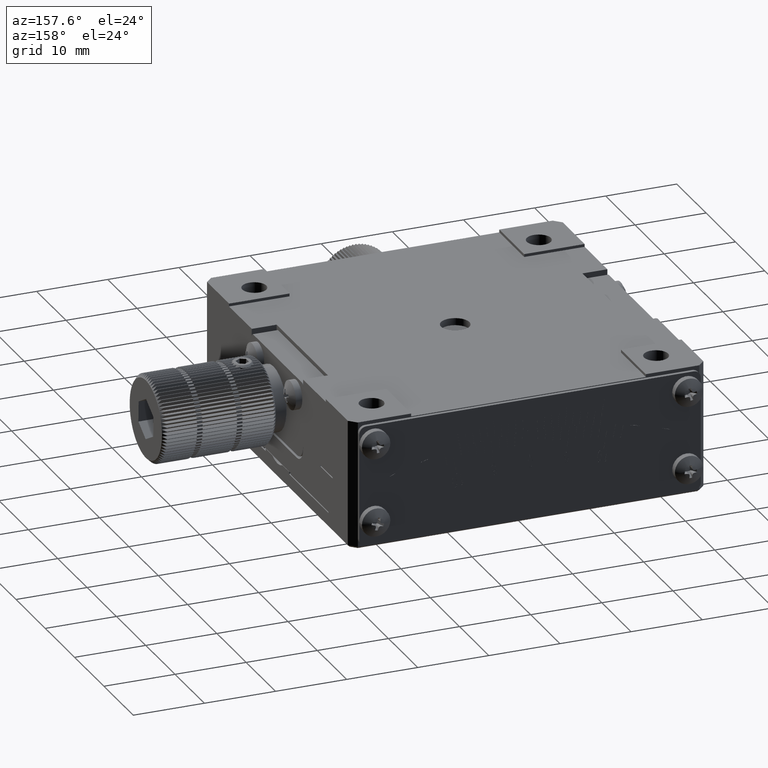
[diagram: clean part render]
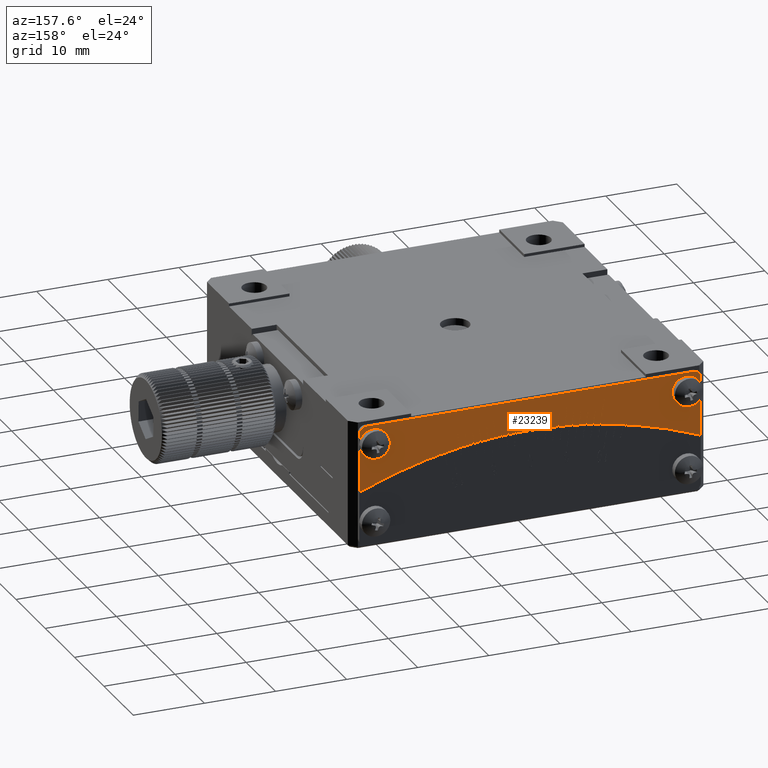
[diagram: same view with one face highlighted and labeled with its STEP entity id]
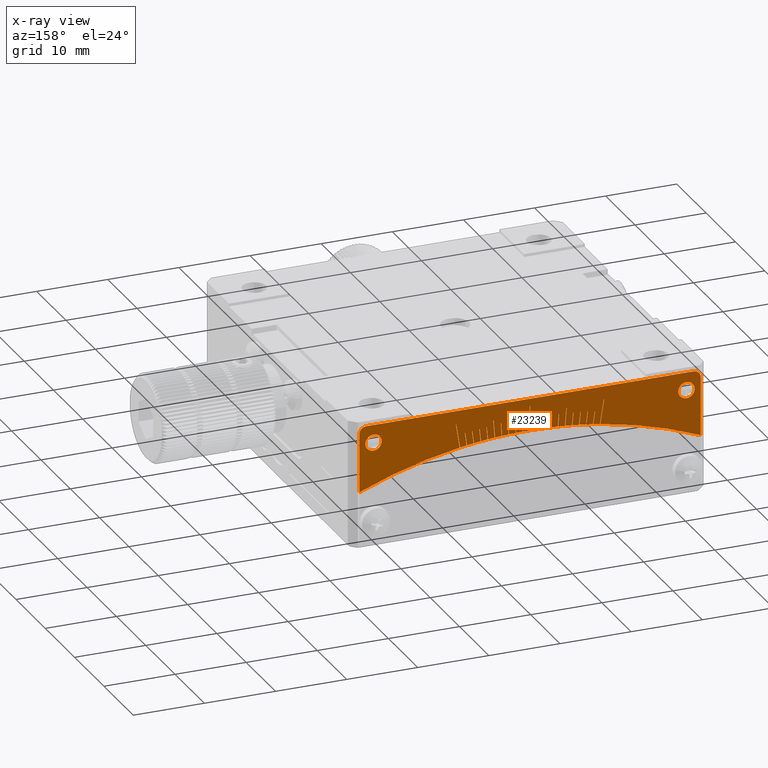
[diagram: x-ray of the same camera — body ghosted, the highlighted face saturated]
A machine part, auxiliary view. The second image highlights one B-rep face of the part: STEP entity #23239.
The next image is the same camera in x-ray: the body ghosted, the highlighted face saturated — about 0% of this face is hidden behind the body in this view.
In plain terms, the highlighted planar face has unit normal (0, 1, 0).
Its self-contained STEP definition (entity closure, byte-faithful):
#45 = LINE ( 'NONE', #11905, #52378 ) ;
#48 = CARTESIAN_POINT ( 'NONE',  ( 0.02500000000000548658, 25.50000000000000355, 62.99999503968234649 ) ) ;
#72 = CARTESIAN_POINT ( 'NONE',  ( 9.105648539197600755, 25.50000000000000355, 64.15705063999953950 ) ) ;
#227 = ORIENTED_EDGE ( 'NONE', *, *, #38838, .T. ) ;
#267 = VECTOR ( 'NONE', #36480, 1000.000000000000227 ) ;
#466 = VERTEX_POINT ( 'NONE', #55515 ) ;
#712 = VECTOR ( 'NONE', #60456, 1000.000000000000000 ) ;
#928 = LINE ( 'NONE', #5468, #41509 ) ;
#960 = DIRECTION ( 'NONE',  ( -0.000000000000000000, -1.000000000000000000, -0.000000000000000000 ) ) ;
#1081 = DIRECTION ( 'NONE',  ( 0.000000000000000000, 0.000000000000000000, -1.000000000000000000 ) ) ;
#1133 = DIRECTION ( 'NONE',  ( -0.1564344650402317294, 0.000000000000000000, 0.9876883405951375483 ) ) ;
#1460 = LINE ( 'NONE', #22720, #16556 ) ;
#1577 = CIRCLE ( 'NONE', #51559, 63.00000000000000000 ) ;
#1633 = VECTOR ( 'NONE', #45106, 1000.000000000000114 ) ;
#1777 = CARTESIAN_POINT ( 'NONE',  ( 2.060404696464523511, 25.50000000000000355, 64.76723488485239955 ) ) ;
#1791 = CARTESIAN_POINT ( 'NONE',  ( -7.085933790496322437, 25.50000000000000355, 64.41140834091083889 ) ) ;
#2049 = EDGE_CURVE ( 'NONE', #63994, #25813, #8213, .T. ) ;
#2108 = DIRECTION ( 'NONE',  ( -0.9900236577165227869, 0.000000000000000000, 0.1409012319378273592 ) ) ;
#2176 = CIRCLE ( 'NONE', #33299, 1.000000000000000888 ) ;
#2665 = LINE ( 'NONE', #44444, #64361 ) ;
#2742 = EDGE_CURVE ( 'NONE', #34630, #42780, #67486, .T. ) ;
#2754 = AXIS2_PLACEMENT_3D ( 'NONE', #5589, #26854, #32403 ) ;
#2757 = VERTEX_POINT ( 'NONE', #46311 ) ;
#2801 = CARTESIAN_POINT ( 'NONE',  ( -10.42758335772560940, 25.50000000000000355, 65.67735888870275573 ) ) ;
#2947 = EDGE_CURVE ( 'NONE', #51946, #22624, #6692, .T. ) ;
#3209 = CARTESIAN_POINT ( 'NONE',  ( 7.135631838269095972, 25.50000000000000355, 64.40592162535628518 ) ) ;
#3262 = CARTESIAN_POINT ( 'NONE',  ( 10.42758335772562539, 25.50000000000000355, 65.67735888870274152 ) ) ;
#3494 = CARTESIAN_POINT ( 'NONE',  ( -7.085933790496321549, 25.50000000000000355, 64.41140834091083889 ) ) ;
#3561 = AXIS2_PLACEMENT_3D ( 'NONE', #33141, #38370, #1081 ) ;
#3613 = CARTESIAN_POINT ( 'NONE',  ( 1.014557828543468876, 25.50000000000000355, 62.99183020370610819 ) ) ;
#3655 = CARTESIAN_POINT ( 'NONE',  ( -4.093776022249292268, 25.50000000000000355, 64.67055728863415709 ) ) ;
#3721 = CARTESIAN_POINT ( 'NONE',  ( -7.135631838269079985, 25.50000000000000355, 64.40592162535628518 ) ) ;
#3746 = ORIENTED_EDGE ( 'NONE', *, *, #56628, .T. ) ;
#3764 = LINE ( 'NONE', #19093, #50815 ) ;
#4000 = CARTESIAN_POINT ( 'NONE',  ( 0.000000000000000000, 25.50000000000000355, 0.000000000000000000 ) ) ;
#4038 = EDGE_CURVE ( 'NONE', #44534, #6604, #51096, .T. ) ;
#4112 = DIRECTION ( 'NONE',  ( -0.03141075907812815315, 0.000000000000000000, -0.9995065603657314890 ) ) ;
#4275 = ORIENTED_EDGE ( 'NONE', *, *, #56672, .T. ) ;
#4454 = VERTEX_POINT ( 'NONE', #26624 ) ;
#4463 = EDGE_CURVE ( 'NONE', #68002, #44534, #12226, .T. ) ;
#4553 = EDGE_CURVE ( 'NONE', #14508, #46883, #7341, .T. ) ;
#4556 = CARTESIAN_POINT ( 'NONE',  ( -2.060404696464510632, 25.50000000000000355, 64.76723488485239955 ) ) ;
#4675 = LINE ( 'NONE', #25946, #41499 ) ;
#4808 = ORIENTED_EDGE ( 'NONE', *, *, #67985, .T. ) ;
#4841 = DIRECTION ( 'NONE',  ( -0.9988898749619719020, 0.000000000000000000, -0.04710645070960021996 ) ) ;
#4857 = LINE ( 'NONE', #40399, #38393 ) ;
#4874 = EDGE_CURVE ( 'NONE', #49198, #59815, #8197, .T. ) ;
#4923 = DIRECTION ( 'NONE',  ( 0.000000000000000000, 0.000000000000000000, -1.000000000000000000 ) ) ;
#4954 = VECTOR ( 'NONE', #19895, 1000.000000000000227 ) ;
#5059 = ORIENTED_EDGE ( 'NONE', *, *, #26024, .T. ) ;
#5145 = AXIS2_PLACEMENT_3D ( 'NONE', #51404, #28936, #54658 ) ;
#5262 = CARTESIAN_POINT ( 'NONE',  ( 0.000000000000000000, 25.50000000000000355, 0.000000000000000000 ) ) ;
#5276 = CARTESIAN_POINT ( 'NONE',  ( -5.903934223144204019, 25.50000000000000355, 62.72275153952342208 ) ) ;
#5285 = VECTOR ( 'NONE', #57038, 1000.000000000000227 ) ;
#5352 = CIRCLE ( 'NONE', #17591, 1.000000000000000888 ) ;
#5405 = ORIENTED_EDGE ( 'NONE', *, *, #12774, .T. ) ;
#5468 = CARTESIAN_POINT ( 'NONE',  ( 7.085933790496335760, 25.50000000000000355, 64.41140834091083889 ) ) ;
#5531 = CARTESIAN_POINT ( 'NONE',  ( -10.37819894069585480, 25.50000000000000355, 65.68518061195476321 ) ) ;
#5589 = CARTESIAN_POINT ( 'NONE',  ( 0.000000000000000000, 25.50000000000000355, 0.000000000000000000 ) ) ;
#5708 = VECTOR ( 'NONE', #60828, 1000.000000000000227 ) ;
#5880 = DIRECTION ( 'NONE',  ( -0.9955619646030797742, 0.000000000000000000, -0.09410831331851710058 ) ) ;
#5910 = ORIENTED_EDGE ( 'NONE', *, *, #36331, .T. ) ;
#5935 = CARTESIAN_POINT ( 'NONE',  ( 0.000000000000000000, 25.50000000000000355, 0.000000000000000000 ) ) ;
#6059 = CIRCLE ( 'NONE', #14982, 63.00000000000000000 ) ;
#6151 = VERTEX_POINT ( 'NONE', #48 ) ;
#6279 = CIRCLE ( 'NONE', #25218, 63.00000000000000000 ) ;
#6344 = ORIENTED_EDGE ( 'NONE', *, *, #37050, .T. ) ;
#6460 = DIRECTION ( 'NONE',  ( -0.9939609554551650517, 0.000000000000000000, 0.1097343110911777608 ) ) ;
#6525 = CARTESIAN_POINT ( 'NONE',  ( 0.000000000000000000, 25.50000000000000355, 0.000000000000000000 ) ) ;
#6549 = VERTEX_POINT ( 'NONE', #64576 ) ;
#6587 = EDGE_CURVE ( 'NONE', #19536, #35478, #1577, .T. ) ;
#6604 = VERTEX_POINT ( 'NONE', #59714 ) ;
#6692 = CIRCLE ( 'NONE', #31191, 63.00000000000000000 ) ;
#6741 = ORIENTED_EDGE ( 'NONE', *, *, #30948, .T. ) ;
#6832 = ORIENTED_EDGE ( 'NONE', *, *, #32669, .T. ) ;
#7093 = CIRCLE ( 'NONE', #48234, 63.00000000000000000 ) ;
#7097 = VECTOR ( 'NONE', #64529, 1000.000000000000000 ) ;
#7123 = EDGE_CURVE ( 'NONE', #58114, #49198, #7860, .T. ) ;
#7237 = ORIENTED_EDGE ( 'NONE', *, *, #7123, .T. ) ;
#7284 = ORIENTED_EDGE ( 'NONE', *, *, #60896, .T. ) ;
#7296 = VERTEX_POINT ( 'NONE', #36737 ) ;
#7341 = LINE ( 'NONE', #49798, #33755 ) ;
#7347 = CARTESIAN_POINT ( 'NONE',  ( 9.155149722083429253, 25.50000000000000355, 64.15000557840266993 ) ) ;
#7458 = CARTESIAN_POINT ( 'NONE',  ( 0.9645639969193859908, 25.50000000000000355, 62.99261556957169716 ) ) ;
#7535 = EDGE_CURVE ( 'NONE', #67723, #19449, #44674, .T. ) ;
#7542 = LINE ( 'NONE', #66310, #50124 ) ;
#7557 = EDGE_CURVE ( 'NONE', #31120, #38821, #55448, .T. ) ;
#7684 = EDGE_CURVE ( 'NONE', #35478, #52082, #54063, .T. ) ;
#7860 = LINE ( 'NONE', #50315, #1633 ) ;
#7965 = ORIENTED_EDGE ( 'NONE', *, *, #18038, .T. ) ;
#7985 = CIRCLE ( 'NONE', #46886, 63.00000000000000000 ) ;
#8008 = VERTEX_POINT ( 'NONE', #68559 ) ;
#8163 = DIRECTION ( 'NONE',  ( 0.000000000000000000, 0.000000000000000000, -1.000000000000000000 ) ) ;
#8197 = CIRCLE ( 'NONE', #46000, 63.00000000000000000 ) ;
#8213 = LINE ( 'NONE', #29825, #51217 ) ;
#8297 = CARTESIAN_POINT ( 'NONE',  ( -5.114147447648483613, 25.50000000000000355, 65.30004189188642272 ) ) ;
#8328 = CARTESIAN_POINT ( 'NONE',  ( 6.938110078305212092, 25.50000000000000355, 62.61679190553697083 ) ) ;
#8364 = AXIS2_PLACEMENT_3D ( 'NONE', #6525, #960, #27451 ) ;
#8386 = DIRECTION ( 'NONE',  ( -0.000000000000000000, -1.000000000000000000, -0.000000000000000000 ) ) ;
#8651 = LINE ( 'NONE', #8297, #8881 ) ;
#8683 = CARTESIAN_POINT ( 'NONE',  ( -6.938110078305197881, 25.50000000000000355, 62.61679190553695662 ) ) ;
#8854 = ORIENTED_EDGE ( 'NONE', *, *, #61755, .T. ) ;
#8881 = VECTOR ( 'NONE', #18416, 1000.000000000000227 ) ;
#8939 = EDGE_CURVE ( 'NONE', #34248, #68763, #30613, .T. ) ;
#9069 = EDGE_CURVE ( 'NONE', #67340, #15088, #45, .T. ) ;
#9197 = VERTEX_POINT ( 'NONE', #22337 ) ;
#9274 = DIRECTION ( 'NONE',  ( 0.000000000000000000, 0.000000000000000000, -1.000000000000000000 ) ) ;
#9429 = CIRCLE ( 'NONE', #56101, 63.00000000000000000 ) ;
#9456 = VECTOR ( 'NONE', #29381, 1000.000000000000227 ) ;
#9520 = CARTESIAN_POINT ( 'NONE',  ( -1.953890002105594048, 25.50000000000000355, 62.96969361414799238 ) ) ;
#9570 = VECTOR ( 'NONE', #37754, 1000.000000000000114 ) ;
#9654 = ORIENTED_EDGE ( 'NONE', *, *, #14586, .T. ) ;
#9668 = DIRECTION ( 'NONE',  ( 0.000000000000000000, 0.000000000000000000, -1.000000000000000000 ) ) ;
#10053 = CARTESIAN_POINT ( 'NONE',  ( -3.027525525447836596, 25.50000000000000355, 64.72923660399230528 ) ) ;
#10138 = CARTESIAN_POINT ( 'NONE',  ( -8.096790045741416364, 25.50000000000000355, 64.29216105481320653 ) ) ;
#10178 = LINE ( 'NONE', #31437, #29788 ) ;
#10276 = VERTEX_POINT ( 'NONE', #40935 ) ;
#10317 = CARTESIAN_POINT ( 'NONE',  ( -5.903934223144203131, 25.50000000000000355, 62.72275153952340787 ) ) ;
#10615 = LINE ( 'NONE', #16515, #9570 ) ;
#10653 = CARTESIAN_POINT ( 'NONE',  ( 5.114147447648496048, 25.50000000000000355, 65.30004189188639430 ) ) ;
#10655 = DIRECTION ( 'NONE',  ( -0.01570731731182080371, 0.000000000000000000, -0.9998766324816605877 ) ) ;
#10690 = FACE_BOUND ( 'NONE', #35228, .T. ) ;
#10785 = ORIENTED_EDGE ( 'NONE', *, *, #4874, .T. ) ;
#10840 = DIRECTION ( 'NONE',  ( -0.09410831331851386705, 0.000000000000000000, 0.9955619646030799963 ) ) ;
#10850 = VECTOR ( 'NONE', #54033, 1000.000000000000000 ) ;
#10917 = VECTOR ( 'NONE', #23622, 1000.000000000000000 ) ;
#10991 = EDGE_CURVE ( 'NONE', #55260, #63994, #59054, .T. ) ;
#11166 = CARTESIAN_POINT ( 'NONE',  ( 9.880062730084816280, 25.50000000000000355, 62.22044969661974534 ) ) ;
#11221 = ORIENTED_EDGE ( 'NONE', *, *, #6587, .T. ) ;
#11257 = LINE ( 'NONE', #38069, #47260 ) ;
#11360 = CARTESIAN_POINT ( 'NONE',  ( 0.000000000000000000, 25.50000000000000355, 0.000000000000000000 ) ) ;
#11759 = CARTESIAN_POINT ( 'NONE',  ( 0.02500000000000577455, 25.50000000000000355, 66.49999503968234649 ) ) ;
#11905 = CARTESIAN_POINT ( 'NONE',  ( 1.014557828543468654, 25.50000000000000355, 62.99183020370610819 ) ) ;
#11994 = ORIENTED_EDGE ( 'NONE', *, *, #61263, .T. ) ;
#12080 = DIRECTION ( 'NONE',  ( 0.000000000000000000, 0.000000000000000000, -1.000000000000000000 ) ) ;
#12226 = LINE ( 'NONE', #1777, #52603 ) ;
#12422 = EDGE_CURVE ( 'NONE', #34262, #38799, #32358, .T. ) ;
#12515 = CARTESIAN_POINT ( 'NONE',  ( -9.830678313055042139, 25.50000000000000355, 62.22827141987176702 ) ) ;
#12550 = DIRECTION ( 'NONE',  ( -0.09410831331851292336, 0.000000000000000000, -0.9955619646030801073 ) ) ;
#12665 = DIRECTION ( 'NONE',  ( -0.9876883405951564221, 0.000000000000000000, 0.1564344650401126580 ) ) ;
#12692 = VECTOR ( 'NONE', #51313, 1000.000000000000114 ) ;
#12710 = VERTEX_POINT ( 'NONE', #63229 ) ;
#12729 = CARTESIAN_POINT ( 'NONE',  ( -22.99999999999998934, 25.50000000000000355, 67.50000000000000000 ) ) ;
#12773 = CARTESIAN_POINT ( 'NONE',  ( 0.000000000000000000, 25.50000000000000355, 0.000000000000000000 ) ) ;
#12774 = EDGE_CURVE ( 'NONE', #52730, #23985, #928, .T. ) ;
#12954 = VERTEX_POINT ( 'NONE', #40597 ) ;
#12983 = VERTEX_POINT ( 'NONE', #56914 ) ;
#13003 = VERTEX_POINT ( 'NONE', #67641 ) ;
#13153 = ORIENTED_EDGE ( 'NONE', *, *, #22554, .T. ) ;
#13170 = CARTESIAN_POINT ( 'NONE',  ( -7.135631838269079985, 25.50000000000000355, 64.40592162535628518 ) ) ;
#13274 = LINE ( 'NONE', #65773, #50490 ) ;
#13395 = DIRECTION ( 'NONE',  ( -0.000000000000000000, -1.000000000000000000, -0.000000000000000000 ) ) ;
#13453 = EDGE_CURVE ( 'NONE', #22624, #21424, #14066, .T. ) ;
#13619 = VECTOR ( 'NONE', #41001, 1000.000000000000000 ) ;
#13855 = DIRECTION ( 'NONE',  ( 0.09410831331851411685, 0.000000000000000000, -0.9955619646030799963 ) ) ;
#14066 = LINE ( 'NONE', #9520, #39325 ) ;
#14076 = CARTESIAN_POINT ( 'NONE',  ( -2.992678407918578642, 25.50000000000000355, 62.92887950652528417 ) ) ;
#14151 = VERTEX_POINT ( 'NONE', #24652 ) ;
#14243 = DIRECTION ( 'NONE',  ( -0.06279051952931360980, 0.000000000000000000, -0.9980267284282715590 ) ) ;
#14442 = ORIENTED_EDGE ( 'NONE', *, *, #61344, .T. ) ;
#14469 = DIRECTION ( 'NONE',  ( 0.06279051952931360980, 0.000000000000000000, -0.9980267284282715590 ) ) ;
#14508 = VERTEX_POINT ( 'NONE', #7347 ) ;
#14526 = DIRECTION ( 'NONE',  ( 0.03141075907812815315, 0.000000000000000000, 0.9995065603657314890 ) ) ;
#14586 = EDGE_CURVE ( 'NONE', #68765, #24783, #4857, .T. ) ;
#14982 = AXIS2_PLACEMENT_3D ( 'NONE', #18619, #13395, #8163 ) ;
#14997 = VECTOR ( 'NONE', #42495, 1000.000000000000000 ) ;
#15006 = ORIENTED_EDGE ( 'NONE', *, *, #27279, .T. ) ;
#15056 = DIRECTION ( 'NONE',  ( -0.000000000000000000, -1.000000000000000000, -0.000000000000000000 ) ) ;
#15088 = VERTEX_POINT ( 'NONE', #68048 ) ;
#15150 = DIRECTION ( 'NONE',  ( -0.000000000000000000, -1.000000000000000000, -0.000000000000000000 ) ) ;
#15215 = CARTESIAN_POINT ( 'NONE',  ( 0.000000000000000000, 25.50000000000000355, 66.49999503968234649 ) ) ;
#15245 = CARTESIAN_POINT ( 'NONE',  ( 4.967845575015538806, 25.50000000000000355, 62.80382560276719062 ) ) ;
#15371 = LINE ( 'NONE', #4556, #58522 ) ;
#15389 = ORIENTED_EDGE ( 'NONE', *, *, #9069, .T. ) ;
#15574 = ORIENTED_EDGE ( 'NONE', *, *, #34764, .T. ) ;
#15618 = CARTESIAN_POINT ( 'NONE',  ( -4.043874685827878679, 25.50000000000000355, 64.67369681461063635 ) ) ;
#15638 = VECTOR ( 'NONE', #17465, 1000.000000000000227 ) ;
#15801 = LINE ( 'NONE', #47112, #10850 ) ;
#15816 = VERTEX_POINT ( 'NONE', #60305 ) ;
#15825 = CARTESIAN_POINT ( 'NONE',  ( 0.000000000000000000, 25.50000000000000355, 0.000000000000000000 ) ) ;
#15881 = VECTOR ( 'NONE', #5880, 1000.000000000000114 ) ;
#15896 = ORIENTED_EDGE ( 'NONE', *, *, #54153, .T. ) ;
#16083 = LINE ( 'NONE', #64738, #5708 ) ;
#16110 = EDGE_CURVE ( 'NONE', #52082, #45747, #10615, .T. ) ;
#16155 = VECTOR ( 'NONE', #23815, 1000.000000000000114 ) ;
#16370 = ORIENTED_EDGE ( 'NONE', *, *, #68441, .T. ) ;
#16372 = LINE ( 'NONE', #48692, #39144 ) ;
#16490 = EDGE_CURVE ( 'NONE', #17181, #9197, #10178, .T. ) ;
#16515 = CARTESIAN_POINT ( 'NONE',  ( 4.093776022249306479, 25.50000000000000355, 64.67055728863417130 ) ) ;
#16556 = VECTOR ( 'NONE', #43231, 1000.000000000000000 ) ;
#16624 = VERTEX_POINT ( 'NONE', #59543 ) ;
#16671 = VECTOR ( 'NONE', #37991, 1000.000000000000000 ) ;
#16739 = CARTESIAN_POINT ( 'NONE',  ( -3.930851750675115053, 25.50000000000000355, 62.87724870343974715 ) ) ;
#16846 = ORIENTED_EDGE ( 'NONE', *, *, #57430, .T. ) ;
#16937 = DIRECTION ( 'NONE',  ( -0.000000000000000000, -1.000000000000000000, -0.000000000000000000 ) ) ;
#17002 = AXIS2_PLACEMENT_3D ( 'NONE', #42598, #47807, #28594 ) ;
#17117 = EDGE_CURVE ( 'NONE', #45747, #12983, #3764, .T. ) ;
#17181 = VERTEX_POINT ( 'NONE', #23645 ) ;
#17247 = VERTEX_POINT ( 'NONE', #63921 ) ;
#17357 = CARTESIAN_POINT ( 'NONE',  ( -21.99999999999999289, 25.50000000000000355, 66.15000000000000568 ) ) ;
#17400 = DIRECTION ( 'NONE',  ( 0.000000000000000000, 0.000000000000000000, -1.000000000000000000 ) ) ;
#17465 = DIRECTION ( 'NONE',  ( 0.1564344650402312853, 0.000000000000000000, -0.9876883405951375483 ) ) ;
#17591 = AXIS2_PLACEMENT_3D ( 'NONE', #36125, #57325, #9668 ) ;
#17836 = CARTESIAN_POINT ( 'NONE',  ( 0.000000000000000000, 25.50000000000000355, 0.000000000000000000 ) ) ;
#18038 = EDGE_CURVE ( 'NONE', #6549, #12710, #29191, .T. ) ;
#18166 = ORIENTED_EDGE ( 'NONE', *, *, #55458, .T. ) ;
#18265 = EDGE_CURVE ( 'NONE', #14151, #56304, #5352, .T. ) ;
#18273 = DIRECTION ( 'NONE',  ( -0.000000000000000000, 0.000000000000000000, -1.000000000000000000 ) ) ;
#18416 = DIRECTION ( 'NONE',  ( -0.9969173337331278528, 0.000000000000000000, -0.07845909572784552644 ) ) ;
#18462 = CARTESIAN_POINT ( 'NONE',  ( 0.000000000000000000, 25.50000000000000355, 0.000000000000000000 ) ) ;
#18591 = EDGE_CURVE ( 'NONE', #466, #54696, #52024, .T. ) ;
#18619 = CARTESIAN_POINT ( 'NONE',  ( 0.000000000000000000, 25.50000000000000355, 0.000000000000000000 ) ) ;
#18964 = EDGE_CURVE ( 'NONE', #66108, #58114, #23128, .T. ) ;
#19036 = ORIENTED_EDGE ( 'NONE', *, *, #34969, .T. ) ;
#19048 = VECTOR ( 'NONE', #22588, 1000.000000000000114 ) ;
#19093 = CARTESIAN_POINT ( 'NONE',  ( 4.043874685827891113, 25.50000000000000355, 64.67369681461065056 ) ) ;
#19177 = VECTOR ( 'NONE', #67363, 1000.000000000000227 ) ;
#19183 = CARTESIAN_POINT ( 'NONE',  ( 6.123107285347697548, 25.50000000000000355, 64.51005766014301912 ) ) ;
#19210 = CARTESIAN_POINT ( 'NONE',  ( -4.917999708328870234, 25.50000000000000355, 62.80774855755360875 ) ) ;
#19232 = DIRECTION ( 'NONE',  ( 0.000000000000000000, 0.000000000000000000, -1.000000000000000000 ) ) ;
#19292 = ORIENTED_EDGE ( 'NONE', *, *, #19515, .T. ) ;
#19449 = VERTEX_POINT ( 'NONE', #27912 ) ;
#19457 = EDGE_CURVE ( 'NONE', #24865, #52005, #23054, .T. ) ;
#19486 = CARTESIAN_POINT ( 'NONE',  ( -1.042830999704733808, 25.50000000000000355, 64.79160814217308939 ) ) ;
#19515 = EDGE_CURVE ( 'NONE', #6604, #67340, #36616, .T. ) ;
#19536 = VERTEX_POINT ( 'NONE', #50835 ) ;
#19774 = CARTESIAN_POINT ( 'NONE',  ( 1.042830999704746242, 25.50000000000000355, 64.79160814217308939 ) ) ;
#19895 = DIRECTION ( 'NONE',  ( -0.07845909572784531827, 0.000000000000000000, 0.9969173337331278528 ) ) ;
#19916 = DIRECTION ( 'NONE',  ( -0.1097343110910463659, 0.000000000000000000, 0.9939609554551795956 ) ) ;
#19971 = EDGE_CURVE ( 'NONE', #53153, #17181, #8651, .T. ) ;
#19980 = CARTESIAN_POINT ( 'NONE',  ( -22.99999999999998934, 25.50000000000000355, 66.50000000000000000 ) ) ;
#20707 = DIRECTION ( 'NONE',  ( -0.000000000000000000, -1.000000000000000000, -0.000000000000000000 ) ) ;
#20765 = EDGE_CURVE ( 'NONE', #54219, #54219, #62305, .T. ) ;
#20767 = LINE ( 'NONE', #22133, #7097 ) ;
#20808 = ORIENTED_EDGE ( 'NONE', *, *, #40152, .T. ) ;
#20953 = LINE ( 'NONE', #57482, #43483 ) ;
#21045 = ORIENTED_EDGE ( 'NONE', *, *, #32319, .T. ) ;
#21050 = DIRECTION ( 'NONE',  ( 0.000000000000000000, 0.000000000000000000, 1.000000000000000000 ) ) ;
#21064 = ORIENTED_EDGE ( 'NONE', *, *, #50038, .T. ) ;
#21104 = VERTEX_POINT ( 'NONE', #25520 ) ;
#21116 = LINE ( 'NONE', #15215, #52285 ) ;
#21169 = CARTESIAN_POINT ( 'NONE',  ( -0.02499999999999356209, 25.50000000000000355, 62.99999503968234649 ) ) ;
#21424 = VERTEX_POINT ( 'NONE', #34488 ) ;
#21703 = VECTOR ( 'NONE', #43022, 1000.000000000000114 ) ;
#21746 = VERTEX_POINT ( 'NONE', #36452 ) ;
#22032 = CARTESIAN_POINT ( 'NONE',  ( -2.010429368446224885, 25.50000000000000355, 64.76880542280630948 ) ) ;
#22120 = CARTESIAN_POINT ( 'NONE',  ( 2.010429368446237319, 25.50000000000000355, 64.76880542280630948 ) ) ;
#22133 = CARTESIAN_POINT ( 'NONE',  ( -23.99999999999998934, 25.50000000000000355, 67.50000000000000000 ) ) ;
#22337 = CARTESIAN_POINT ( 'NONE',  ( -4.967845575015525483, 25.50000000000000355, 62.80382560276723325 ) ) ;
#22369 = DIRECTION ( 'NONE',  ( 0.000000000000000000, 0.000000000000000000, -1.000000000000000000 ) ) ;
#22460 = DIRECTION ( 'NONE',  ( 0.04710645070964257497, 0.000000000000000000, -0.9988898749619699036 ) ) ;
#22472 = CARTESIAN_POINT ( 'NONE',  ( 8.852026321709949741, 25.50000000000000355, 62.37500805610973487 ) ) ;
#22481 = VECTOR ( 'NONE', #10840, 1000.000000000000114 ) ;
#22554 = EDGE_CURVE ( 'NONE', #65943, #34248, #30984, .T. ) ;
#22588 = DIRECTION ( 'NONE',  ( -0.9876883405951571993, 0.000000000000000000, -0.1564344650401073011 ) ) ;
#22624 = VERTEX_POINT ( 'NONE', #37897 ) ;
#22720 = CARTESIAN_POINT ( 'NONE',  ( -8.146395780807139886, 25.50000000000000355, 64.28589439313499554 ) ) ;
#23054 = LINE ( 'NONE', #1791, #61005 ) ;
#23064 = CARTESIAN_POINT ( 'NONE',  ( 0.000000000000000000, 25.50000000000000355, 0.000000000000000000 ) ) ;
#23071 = VERTEX_POINT ( 'NONE', #61240 ) ;
#23109 = CARTESIAN_POINT ( 'NONE',  ( 5.163993314335152185, 25.50000000000000355, 65.29611893710000459 ) ) ;
#23128 = LINE ( 'NONE', #55438, #28826 ) ;
#23239 = ADVANCED_FACE ( 'NONE', ( #68714, #10690, #37500 ), #59003, .T. ) ;
#23360 = CARTESIAN_POINT ( 'NONE',  ( -10.42758335772560940, 25.50000000000000355, 65.67735888870275573 ) ) ;
#23393 = ORIENTED_EDGE ( 'NONE', *, *, #4038, .T. ) ;
#23622 = DIRECTION ( 'NONE',  ( 3.750535937316246135E-16, -0.000000000000000000, 1.000000000000000000 ) ) ;
#23645 = CARTESIAN_POINT ( 'NONE',  ( -5.163993314335139750, 25.50000000000000355, 65.29611893710003301 ) ) ;
#23815 = DIRECTION ( 'NONE',  ( 0.1409012319375838040, 0.000000000000000000, -0.9900236577165574259 ) ) ;
#23985 = VERTEX_POINT ( 'NONE', #26485 ) ;
#24037 = VECTOR ( 'NONE', #58926, 1000.000000000000227 ) ;
#24267 = DIRECTION ( 'NONE',  ( 0.000000000000000000, -0.000000000000000000, 1.000000000000000000 ) ) ;
#24385 = CIRCLE ( 'NONE', #57675, 63.00000000000000000 ) ;
#24516 = CARTESIAN_POINT ( 'NONE',  ( 23.00000000000000711, 25.50000000000000355, 67.50000000000000000 ) ) ;
#24567 = CARTESIAN_POINT ( 'NONE',  ( -9.880062730084798517, 25.50000000000000355, 62.22044969661975955 ) ) ;
#24642 = CARTESIAN_POINT ( 'NONE',  ( 4.093776022249306479, 25.50000000000000355, 64.67055728863417130 ) ) ;
#24652 = CARTESIAN_POINT ( 'NONE',  ( 24.00000000000000711, 25.50000000000000355, 66.50000000000000000 ) ) ;
#24676 = DIRECTION ( 'NONE',  ( 0.000000000000000000, 0.000000000000000000, -1.000000000000000000 ) ) ;
#24716 = EDGE_CURVE ( 'NONE', #21104, #54009, #13274, .T. ) ;
#24783 = VERTEX_POINT ( 'NONE', #29638 ) ;
#24865 = VERTEX_POINT ( 'NONE', #3494 ) ;
#25040 = EDGE_CURVE ( 'NONE', #47839, #43955, #21116, .T. ) ;
#25074 = ORIENTED_EDGE ( 'NONE', *, *, #50052, .T. ) ;
#25218 = AXIS2_PLACEMENT_3D ( 'NONE', #18462, #44547, #60884 ) ;
#25286 = CARTESIAN_POINT ( 'NONE',  ( 8.146395780807152320, 25.50000000000000355, 64.28589439313499554 ) ) ;
#25481 = VERTEX_POINT ( 'NONE', #42259 ) ;
#25485 = CARTESIAN_POINT ( 'NONE',  ( -0.9645639969193738894, 25.50000000000000355, 62.99261556957169716 ) ) ;
#25520 = CARTESIAN_POINT ( 'NONE',  ( -7.871190225325667811, 25.50000000000000355, 62.50635459244713132 ) ) ;
#25756 = EDGE_CURVE ( 'NONE', #65898, #30735, #65479, .T. ) ;
#25813 = VERTEX_POINT ( 'NONE', #3209 ) ;
#25902 = ORIENTED_EDGE ( 'NONE', *, *, #27136, .T. ) ;
#25946 = CARTESIAN_POINT ( 'NONE',  ( 8.096790045741427022, 25.50000000000000355, 64.29216105481320653 ) ) ;
#26024 = EDGE_CURVE ( 'NONE', #57077, #57877, #64384, .T. ) ;
#26167 = ORIENTED_EDGE ( 'NONE', *, *, #53138, .T. ) ;
#26177 = CARTESIAN_POINT ( 'NONE',  ( -0.9928371680806505895, 25.50000000000000355, 64.79239350803868547 ) ) ;
#26185 = DIRECTION ( 'NONE',  ( -0.9921147013144731019, 0.000000000000000000, -0.1253332335643414230 ) ) ;
#26281 = ORIENTED_EDGE ( 'NONE', *, *, #67947, .T. ) ;
#26295 = DIRECTION ( 'NONE',  ( 0.000000000000000000, 0.000000000000000000, -1.000000000000000000 ) ) ;
#26485 = CARTESIAN_POINT ( 'NONE',  ( 6.888412030532454544, 25.50000000000000355, 62.62227862109151744 ) ) ;
#26528 = LINE ( 'NONE', #11166, #49071 ) ;
#26587 = VERTEX_POINT ( 'NONE', #24567 ) ;
#26624 = CARTESIAN_POINT ( 'NONE',  ( 5.953712321374372785, 25.50000000000000355, 62.71804612385747646 ) ) ;
#26679 = CARTESIAN_POINT ( 'NONE',  ( -6.123107285347683337, 25.50000000000000355, 64.51005766014303333 ) ) ;
#26724 = EDGE_CURVE ( 'NONE', #65463, #21746, #52275, .T. ) ;
#26772 = ORIENTED_EDGE ( 'NONE', *, *, #4553, .T. ) ;
#26854 = DIRECTION ( 'NONE',  ( -0.000000000000000000, -1.000000000000000000, -0.000000000000000000 ) ) ;
#26980 = VECTOR ( 'NONE', #4841, 1000.000000000000227 ) ;
#27011 = ORIENTED_EDGE ( 'NONE', *, *, #18265, .F. ) ;
#27136 = EDGE_CURVE ( 'NONE', #31680, #26587, #65434, .T. ) ;
#27194 = DIRECTION ( 'NONE',  ( -0.000000000000000000, -1.000000000000000000, -0.000000000000000000 ) ) ;
#27279 = EDGE_CURVE ( 'NONE', #23985, #4454, #49484, .T. ) ;
#27421 = DIRECTION ( 'NONE',  ( 0.000000000000000000, 0.000000000000000000, -1.000000000000000000 ) ) ;
#27448 = ORIENTED_EDGE ( 'NONE', *, *, #61996, .T. ) ;
#27451 = DIRECTION ( 'NONE',  ( 0.000000000000000000, 0.000000000000000000, -1.000000000000000000 ) ) ;
#27632 = ORIENTED_EDGE ( 'NONE', *, *, #25756, .T. ) ;
#27773 = LINE ( 'NONE', #43405, #33623 ) ;
#27786 = EDGE_CURVE ( 'NONE', #66950, #67723, #54815, .T. ) ;
#27798 = CARTESIAN_POINT ( 'NONE',  ( -8.852026321709937307, 25.50000000000000355, 62.37500805610974197 ) ) ;
#27912 = CARTESIAN_POINT ( 'NONE',  ( -8.901527504595764029, 25.50000000000000355, 62.36796299451285819 ) ) ;
#28082 = DIRECTION ( 'NONE',  ( 0.000000000000000000, -0.000000000000000000, 1.000000000000000000 ) ) ;
#28360 = VERTEX_POINT ( 'NONE', #47641 ) ;
#28375 = ORIENTED_EDGE ( 'NONE', *, *, #29894, .T. ) ;
#28432 = ORIENTED_EDGE ( 'NONE', *, *, #43545, .T. ) ;
#28594 = DIRECTION ( 'NONE',  ( 0.000000000000000000, 0.000000000000000000, 1.000000000000000000 ) ) ;
#28826 = VECTOR ( 'NONE', #12665, 1000.000000000000114 ) ;
#28936 = DIRECTION ( 'NONE',  ( -0.000000000000000000, -1.000000000000000000, -0.000000000000000000 ) ) ;
#29191 = LINE ( 'NONE', #32777, #10917 ) ;
#29381 = DIRECTION ( 'NONE',  ( -0.9969173337331278528, 0.000000000000000000, 0.07845909572784552644 ) ) ;
#29446 = CARTESIAN_POINT ( 'NONE',  ( 5.114147447648496048, 25.50000000000000355, 65.30004189188639430 ) ) ;
#29638 = CARTESIAN_POINT ( 'NONE',  ( 3.027525525447849475, 25.50000000000000355, 64.72923660399230528 ) ) ;
#29698 = ORIENTED_EDGE ( 'NONE', *, *, #8939, .T. ) ;
#29771 = DIRECTION ( 'NONE',  ( 0.000000000000000000, -1.000000000000000000, 0.000000000000000000 ) ) ;
#29788 = VECTOR ( 'NONE', #42203, 1000.000000000000000 ) ;
#29825 = CARTESIAN_POINT ( 'NONE',  ( 6.938110078305212980, 25.50000000000000355, 62.61679190553697083 ) ) ;
#29853 = ORIENTED_EDGE ( 'NONE', *, *, #7557, .T. ) ;
#29894 = EDGE_CURVE ( 'NONE', #17247, #2757, #47831, .T. ) ;
#30102 = EDGE_CURVE ( 'NONE', #24783, #41710, #38789, .T. ) ;
#30155 = ORIENTED_EDGE ( 'NONE', *, *, #16490, .T. ) ;
#30564 = CARTESIAN_POINT ( 'NONE',  ( 22.00000000000001066, 25.50000000000000355, 66.15000000000000568 ) ) ;
#30613 = LINE ( 'NONE', #60683, #48989 ) ;
#30735 = VERTEX_POINT ( 'NONE', #42377 ) ;
#30899 = LINE ( 'NONE', #40287, #60771 ) ;
#30902 = DIRECTION ( 'NONE',  ( -1.000000000000000000, -0.000000000000000000, 0.000000000000000000 ) ) ;
#30948 = EDGE_CURVE ( 'NONE', #45024, #21104, #59649, .T. ) ;
#30984 = LINE ( 'NONE', #10053, #26980 ) ;
#31120 = VERTEX_POINT ( 'NONE', #23109 ) ;
#31191 = AXIS2_PLACEMENT_3D ( 'NONE', #49023, #59119, #17400 ) ;
#31437 = CARTESIAN_POINT ( 'NONE',  ( -5.163993314335139750, 25.50000000000000355, 65.29611893710003301 ) ) ;
#31641 = ORIENTED_EDGE ( 'NONE', *, *, #25040, .T. ) ;
#31680 = VERTEX_POINT ( 'NONE', #23360 ) ;
#31733 = DIRECTION ( 'NONE',  ( 0.000000000000000000, 0.000000000000000000, -1.000000000000000000 ) ) ;
#31911 = LINE ( 'NONE', #58314, #42744 ) ;
#32298 = DIRECTION ( 'NONE',  ( 3.750535937316243670E-16, -0.000000000000000000, -1.000000000000000000 ) ) ;
#32319 = EDGE_CURVE ( 'NONE', #37207, #63122, #31911, .T. ) ;
#32358 = LINE ( 'NONE', #43466, #15881 ) ;
#32390 = ORIENTED_EDGE ( 'NONE', *, *, #19457, .T. ) ;
#32403 = DIRECTION ( 'NONE',  ( 0.000000000000000000, 0.000000000000000000, -1.000000000000000000 ) ) ;
#32542 = ORIENTED_EDGE ( 'NONE', *, *, #42436, .T. ) ;
#32577 = AXIS2_PLACEMENT_3D ( 'NONE', #11360, #53798, #28082 ) ;
#32669 = EDGE_CURVE ( 'NONE', #12954, #50841, #6059, .T. ) ;
#32777 = CARTESIAN_POINT ( 'NONE',  ( -23.99999999999999289, 25.50000000000000355, 58.24946351684280899 ) ) ;
#32941 = LINE ( 'NONE', #54138, #35880 ) ;
#33035 = CARTESIAN_POINT ( 'NONE',  ( 6.123107285347696660, 25.50000000000000355, 64.51005766014301912 ) ) ;
#33058 = ORIENTED_EDGE ( 'NONE', *, *, #7535, .T. ) ;
#33141 = CARTESIAN_POINT ( 'NONE',  ( 0.000000000000000000, 25.50000000000000355, 0.000000000000000000 ) ) ;
#33159 = DIRECTION ( 'NONE',  ( -0.9995065603657293796, 0.000000000000000000, -0.03141075907819898538 ) ) ;
#33299 = AXIS2_PLACEMENT_3D ( 'NONE', #19980, #29771, #67256 ) ;
#33359 = CARTESIAN_POINT ( 'NONE',  ( -1.014557828543456663, 25.50000000000000355, 62.99183020370610819 ) ) ;
#33452 = CARTESIAN_POINT ( 'NONE',  ( -5.114147447648483613, 25.50000000000000355, 65.30004189188642272 ) ) ;
#33562 = VECTOR ( 'NONE', #13855, 1000.000000000000114 ) ;
#33623 = VECTOR ( 'NONE', #32298, 1000.000000000000000 ) ;
#33755 = VECTOR ( 'NONE', #2108, 1000.000000000000114 ) ;
#34030 = EDGE_CURVE ( 'NONE', #58071, #7296, #11257, .T. ) ;
#34248 = VERTEX_POINT ( 'NONE', #35253 ) ;
#34253 = ORIENTED_EDGE ( 'NONE', *, *, #35152, .T. ) ;
#34262 = VERTEX_POINT ( 'NONE', #51570 ) ;
#34370 = CARTESIAN_POINT ( 'NONE',  ( -2.942733914170480247, 25.50000000000000355, 62.93123482906077015 ) ) ;
#34384 = EDGE_CURVE ( 'NONE', #25481, #24865, #20953, .T. ) ;
#34396 = VECTOR ( 'NONE', #18273, 1000.000000000000000 ) ;
#34449 = CARTESIAN_POINT ( 'NONE',  ( -9.105648539197586544, 25.50000000000000355, 64.15705063999953950 ) ) ;
#34488 = CARTESIAN_POINT ( 'NONE',  ( -2.010429368446224885, 25.50000000000000355, 64.76880542280630948 ) ) ;
#34630 = VERTEX_POINT ( 'NONE', #33035 ) ;
#34764 = EDGE_CURVE ( 'NONE', #7296, #31680, #58420, .T. ) ;
#34969 = EDGE_CURVE ( 'NONE', #30735, #66108, #26528, .T. ) ;
#35114 = CARTESIAN_POINT ( 'NONE',  ( 2.010429368446237319, 25.50000000000000355, 64.76880542280630948 ) ) ;
#35152 = EDGE_CURVE ( 'NONE', #38799, #55698, #35771, .T. ) ;
#35161 = CIRCLE ( 'NONE', #5145, 63.00000000000000000 ) ;
#35177 = VECTOR ( 'NONE', #12550, 1000.000000000000227 ) ;
#35228 = EDGE_LOOP ( 'NONE', ( #43232 ) ) ;
#35253 = CARTESIAN_POINT ( 'NONE',  ( -3.077470019195934992, 25.50000000000000355, 64.72688128145682640 ) ) ;
#35296 = DIRECTION ( 'NONE',  ( -0.03141075907812790335, 0.000000000000000000, 0.9995065603657314890 ) ) ;
#35478 = VERTEX_POINT ( 'NONE', #49257 ) ;
#35758 = EDGE_CURVE ( 'NONE', #55698, #25481, #37886, .T. ) ;
#35771 = LINE ( 'NONE', #60815, #33562 ) ;
#35837 = DIRECTION ( 'NONE',  ( 0.01570731731182062330, 0.000000000000000000, -0.9998766324816605877 ) ) ;
#35880 = VECTOR ( 'NONE', #6460, 1000.000000000000000 ) ;
#36027 = CARTESIAN_POINT ( 'NONE',  ( 0.000000000000000000, 25.50000000000000355, 0.000000000000000000 ) ) ;
#36125 = CARTESIAN_POINT ( 'NONE',  ( 23.00000000000000711, 25.50000000000000355, 66.50000000000000000 ) ) ;
#36331 = EDGE_CURVE ( 'NONE', #10276, #68765, #16083, .T. ) ;
#36452 = CARTESIAN_POINT ( 'NONE',  ( -0.9645639969193740004, 25.50000000000000355, 62.99261556957169716 ) ) ;
#36480 = DIRECTION ( 'NONE',  ( 0.07845909572784531827, 0.000000000000000000, 0.9969173337331278528 ) ) ;
#36616 = CIRCLE ( 'NONE', #48791, 63.00000000000000000 ) ;
#36643 = CIRCLE ( 'NONE', #67705, 63.00000000000000000 ) ;
#36737 = CARTESIAN_POINT ( 'NONE',  ( -10.37819894069585480, 25.50000000000000355, 65.68518061195476321 ) ) ;
#36951 = EDGE_CURVE ( 'NONE', #46645, #34262, #58144, .T. ) ;
#37050 = EDGE_CURVE ( 'NONE', #9197, #46645, #66867, .T. ) ;
#37207 = VERTEX_POINT ( 'NONE', #44899 ) ;
#37287 = DIRECTION ( 'NONE',  ( -0.01570731731182044635, 0.000000000000000000, 0.9998766324816605877 ) ) ;
#37392 = VECTOR ( 'NONE', #57927, 1000.000000000000114 ) ;
#37500 = FACE_OUTER_BOUND ( 'NONE', #66651, .T. ) ;
#37651 = ORIENTED_EDGE ( 'NONE', *, *, #66606, .T. ) ;
#37674 = DIRECTION ( 'NONE',  ( -0.000000000000000000, -1.000000000000000000, -0.000000000000000000 ) ) ;
#37754 = DIRECTION ( 'NONE',  ( -0.9980267284282662299, 0.000000000000000000, 0.06279051952939686265 ) ) ;
#37886 = CIRCLE ( 'NONE', #58996, 63.00000000000000000 ) ;
#37897 = CARTESIAN_POINT ( 'NONE',  ( -1.953890002105594048, 25.50000000000000355, 62.96969361414800659 ) ) ;
#37930 = ORIENTED_EDGE ( 'NONE', *, *, #56608, .T. ) ;
#37991 = DIRECTION ( 'NONE',  ( -0.06279051952931360980, 0.000000000000000000, 0.9980267284282715590 ) ) ;
#38037 = LINE ( 'NONE', #22032, #66524 ) ;
#38069 = CARTESIAN_POINT ( 'NONE',  ( -9.830678313055043915, 25.50000000000000355, 62.22827141987178834 ) ) ;
#38132 = EDGE_CURVE ( 'NONE', #2757, #55260, #4675, .T. ) ;
#38247 = CARTESIAN_POINT ( 'NONE',  ( 6.073329187117542993, 25.50000000000000355, 64.51476307580894343 ) ) ;
#38370 = DIRECTION ( 'NONE',  ( -0.000000000000000000, -1.000000000000000000, -0.000000000000000000 ) ) ;
#38393 = VECTOR ( 'NONE', #51159, 1000.000000000000227 ) ;
#38477 = CARTESIAN_POINT ( 'NONE',  ( -3.027525525447836596, 25.50000000000000355, 64.72923660399230528 ) ) ;
#38570 = ORIENTED_EDGE ( 'NONE', *, *, #43343, .T. ) ;
#38789 = LINE ( 'NONE', #54075, #24037 ) ;
#38799 = VERTEX_POINT ( 'NONE', #26679 ) ;
#38821 = VERTEX_POINT ( 'NONE', #10653 ) ;
#38838 = EDGE_CURVE ( 'NONE', #51258, #56304, #20767, .T. ) ;
#38881 = CARTESIAN_POINT ( 'NONE',  ( 0.000000000000000000, 25.50000000000000355, 0.000000000000000000 ) ) ;
#38900 = VERTEX_POINT ( 'NONE', #22472 ) ;
#39144 = VECTOR ( 'NONE', #43485, 1000.000000000000114 ) ;
#39238 = DIRECTION ( 'NONE',  ( -0.04710645070964270681, 0.000000000000000000, 0.9988898749619699036 ) ) ;
#39325 = VECTOR ( 'NONE', #35296, 1000.000000000000114 ) ;
#39375 = DIRECTION ( 'NONE',  ( -0.1253332335643048967, 0.000000000000000000, 0.9921147013144777649 ) ) ;
#39392 = ORIENTED_EDGE ( 'NONE', *, *, #17117, .T. ) ;
#39514 = CARTESIAN_POINT ( 'NONE',  ( -9.105648539197586544, 25.50000000000000355, 64.15705063999953950 ) ) ;
#39686 = ORIENTED_EDGE ( 'NONE', *, *, #19971, .T. ) ;
#39933 = EDGE_CURVE ( 'NONE', #47057, #51946, #55662, .T. ) ;
#40051 = CARTESIAN_POINT ( 'NONE',  ( 0.000000000000000000, 25.50000000000000355, 0.000000000000000000 ) ) ;
#40079 = AXIS2_PLACEMENT_3D ( 'NONE', #53381, #43282, #21050 ) ;
#40152 = EDGE_CURVE ( 'NONE', #23071, #66950, #57716, .T. ) ;
#40234 = ORIENTED_EDGE ( 'NONE', *, *, #54600, .T. ) ;
#40287 = CARTESIAN_POINT ( 'NONE',  ( 2.003865330123893340, 25.50000000000000355, 62.96812307619409665 ) ) ;
#40318 = ORIENTED_EDGE ( 'NONE', *, *, #2049, .T. ) ;
#40399 = CARTESIAN_POINT ( 'NONE',  ( 3.077470019195947870, 25.50000000000000355, 64.72688128145682640 ) ) ;
#40597 = CARTESIAN_POINT ( 'NONE',  ( -2.003865330123880018, 25.50000000000000355, 62.96812307619409665 ) ) ;
#40693 = ORIENTED_EDGE ( 'NONE', *, *, #36951, .T. ) ;
#40926 = VECTOR ( 'NONE', #26185, 1000.000000000000114 ) ;
#40935 = CARTESIAN_POINT ( 'NONE',  ( 2.992678407918590633, 25.50000000000000355, 62.92887950652528417 ) ) ;
#41001 = DIRECTION ( 'NONE',  ( -0.9998766324816605877, 0.000000000000000000, 0.01570731731181938123 ) ) ;
#41122 = CARTESIAN_POINT ( 'NONE',  ( 8.901527504595778240, 25.50000000000000355, 62.36796299451286529 ) ) ;
#41499 = VECTOR ( 'NONE', #47136, 1000.000000000000114 ) ;
#41509 = VECTOR ( 'NONE', #47922, 1000.000000000000227 ) ;
#41710 = VERTEX_POINT ( 'NONE', #53196 ) ;
#41814 = DIRECTION ( 'NONE',  ( 0.1409012319375843036, 0.000000000000000000, 0.9900236577165574259 ) ) ;
#42026 = EDGE_CURVE ( 'NONE', #46883, #38900, #43346, .T. ) ;
#42033 = LINE ( 'NONE', #19774, #13619 ) ;
#42075 = CARTESIAN_POINT ( 'NONE',  ( -3.980753087096528198, 25.50000000000000355, 62.87410917746327499 ) ) ;
#42203 = DIRECTION ( 'NONE',  ( 0.07845909572784609542, 0.000000000000000000, -0.9969173337331278528 ) ) ;
#42259 = CARTESIAN_POINT ( 'NONE',  ( -6.888412030532439445, 25.50000000000000355, 62.62227862109151744 ) ) ;
#42377 = CARTESIAN_POINT ( 'NONE',  ( 9.880062730084818057, 25.50000000000000355, 62.22044969661974534 ) ) ;
#42436 = EDGE_CURVE ( 'NONE', #46521, #46521, #42591, .T. ) ;
#42495 = DIRECTION ( 'NONE',  ( -0.9998766324816605877, 0.000000000000000000, -0.01570731731181938123 ) ) ;
#42538 = ORIENTED_EDGE ( 'NONE', *, *, #54119, .T. ) ;
#42591 = CIRCLE ( 'NONE', #17002, 1.149999999999998135 ) ;
#42598 = CARTESIAN_POINT ( 'NONE',  ( 22.00000000000001066, 25.50000000000000355, 65.00000000000000000 ) ) ;
#42682 = ORIENTED_EDGE ( 'NONE', *, *, #18591, .T. ) ;
#42744 = VECTOR ( 'NONE', #10655, 1000.000000000000114 ) ;
#42780 = VERTEX_POINT ( 'NONE', #38247 ) ;
#42890 = ORIENTED_EDGE ( 'NONE', *, *, #7684, .T. ) ;
#43018 = VERTEX_POINT ( 'NONE', #62873 ) ;
#43022 = DIRECTION ( 'NONE',  ( -0.1409012319375836653, 0.000000000000000000, -0.9900236577165574259 ) ) ;
#43231 = DIRECTION ( 'NONE',  ( 0.1253332335643048967, 0.000000000000000000, -0.9921147013144777649 ) ) ;
#43232 = ORIENTED_EDGE ( 'NONE', *, *, #20765, .T. ) ;
#43282 = DIRECTION ( 'NONE',  ( -0.000000000000000000, -1.000000000000000000, -0.000000000000000000 ) ) ;
#43336 = ORIENTED_EDGE ( 'NONE', *, *, #34384, .T. ) ;
#43343 = EDGE_CURVE ( 'NONE', #38821, #19536, #61055, .T. ) ;
#43346 = LINE ( 'NONE', #58982, #21703 ) ;
#43405 = CARTESIAN_POINT ( 'NONE',  ( 24.00000000000000711, 25.50000000000000355, 67.50000000000000000 ) ) ;
#43466 = CARTESIAN_POINT ( 'NONE',  ( -6.073329187117528782, 25.50000000000000355, 64.51476307580895764 ) ) ;
#43483 = VECTOR ( 'NONE', #19916, 1000.000000000000000 ) ;
#43485 = DIRECTION ( 'NONE',  ( 0.09410831331851435277, 0.000000000000000000, 0.9955619646030799963 ) ) ;
#43545 = EDGE_CURVE ( 'NONE', #19449, #58071, #7093, .T. ) ;
#43733 = DIRECTION ( 'NONE',  ( -0.000000000000000000, -1.000000000000000000, -0.000000000000000000 ) ) ;
#43752 = CARTESIAN_POINT ( 'NONE',  ( 0.000000000000000000, 25.50000000000000355, 0.000000000000000000 ) ) ;
#43955 = VERTEX_POINT ( 'NONE', #60870 ) ;
#44259 = DIRECTION ( 'NONE',  ( 0.000000000000000000, 0.000000000000000000, -1.000000000000000000 ) ) ;
#44323 = CARTESIAN_POINT ( 'NONE',  ( 3.980753087096540188, 25.50000000000000355, 62.87410917746328920 ) ) ;
#44351 = VERTEX_POINT ( 'NONE', #56928 ) ;
#44444 = CARTESIAN_POINT ( 'NONE',  ( -2.942733914170480247, 25.50000000000000355, 62.93123482906077015 ) ) ;
#44469 = VECTOR ( 'NONE', #61270, 1000.000000000000227 ) ;
#44534 = VERTEX_POINT ( 'NONE', #22120 ) ;
#44547 = DIRECTION ( 'NONE',  ( -0.000000000000000000, -1.000000000000000000, -0.000000000000000000 ) ) ;
#44674 = LINE ( 'NONE', #51863, #16155 ) ;
#44899 = CARTESIAN_POINT ( 'NONE',  ( 0.9928371680806632460, 25.50000000000000355, 64.79239350803868547 ) ) ;
#44908 = DIRECTION ( 'NONE',  ( -0.9995065603657293796, 0.000000000000000000, 0.03141075907819870783 ) ) ;
#44920 = DIRECTION ( 'NONE',  ( 0.000000000000000000, 0.000000000000000000, -1.000000000000000000 ) ) ;
#44962 = CARTESIAN_POINT ( 'NONE',  ( -8.096790045741416364, 25.50000000000000355, 64.29216105481320653 ) ) ;
#45024 = VERTEX_POINT ( 'NONE', #8683 ) ;
#45106 = DIRECTION ( 'NONE',  ( -0.1564344650402317294, 0.000000000000000000, -0.9876883405951375483 ) ) ;
#45213 = CARTESIAN_POINT ( 'NONE',  ( 4.967845575015540582, 25.50000000000000355, 62.80382560276720483 ) ) ;
#45606 = ORIENTED_EDGE ( 'NONE', *, *, #34030, .T. ) ;
#45747 = VERTEX_POINT ( 'NONE', #60694 ) ;
#45806 = EDGE_CURVE ( 'NONE', #51258, #12710, #2176, .T. ) ;
#45963 = ORIENTED_EDGE ( 'NONE', *, *, #2742, .T. ) ;
#46000 = AXIS2_PLACEMENT_3D ( 'NONE', #62617, #53882, #49358 ) ;
#46311 = CARTESIAN_POINT ( 'NONE',  ( 8.096790045741427022, 25.50000000000000355, 64.29216105481320653 ) ) ;
#46521 = VERTEX_POINT ( 'NONE', #30564 ) ;
#46645 = VERTEX_POINT ( 'NONE', #10317 ) ;
#46883 = VERTEX_POINT ( 'NONE', #72 ) ;
#46886 = AXIS2_PLACEMENT_3D ( 'NONE', #23064, #37674, #44259 ) ;
#47035 = CARTESIAN_POINT ( 'NONE',  ( 0.000000000000000000, 25.50000000000000355, 0.000000000000000000 ) ) ;
#47057 = VERTEX_POINT ( 'NONE', #54337 ) ;
#47112 = CARTESIAN_POINT ( 'NONE',  ( 7.920795960391402879, 25.50000000000000355, 62.50008793076892744 ) ) ;
#47136 = DIRECTION ( 'NONE',  ( -0.1253332335643058404, 0.000000000000000000, -0.9921147013144776539 ) ) ;
#47196 = ORIENTED_EDGE ( 'NONE', *, *, #4463, .T. ) ;
#47260 = VECTOR ( 'NONE', #1133, 1000.000000000000114 ) ;
#47409 = EDGE_CURVE ( 'NONE', #4454, #34630, #16372, .T. ) ;
#47517 = ORIENTED_EDGE ( 'NONE', *, *, #16110, .T. ) ;
#47641 = CARTESIAN_POINT ( 'NONE',  ( -7.920795960391389556, 25.50000000000000355, 62.50008793076891322 ) ) ;
#47719 = LINE ( 'NONE', #10138, #40926 ) ;
#47761 = EDGE_CURVE ( 'NONE', #14151, #65898, #27773, .T. ) ;
#47807 = DIRECTION ( 'NONE',  ( -0.000000000000000000, -1.000000000000000000, -0.000000000000000000 ) ) ;
#47831 = LINE ( 'NONE', #25286, #37392 ) ;
#47839 = VERTEX_POINT ( 'NONE', #11759 ) ;
#47922 = DIRECTION ( 'NONE',  ( -0.1097343110910454084, 0.000000000000000000, -0.9939609554551795956 ) ) ;
#48085 = VECTOR ( 'NONE', #4112, 1000.000000000000227 ) ;
#48234 = AXIS2_PLACEMENT_3D ( 'NONE', #36027, #20707, #63134 ) ;
#48616 = ORIENTED_EDGE ( 'NONE', *, *, #47761, .T. ) ;
#48692 = CARTESIAN_POINT ( 'NONE',  ( 5.953712321374371896, 25.50000000000000355, 62.71804612385747646 ) ) ;
#48791 = AXIS2_PLACEMENT_3D ( 'NONE', #40051, #8386, #44920 ) ;
#48844 = CARTESIAN_POINT ( 'NONE',  ( 0.000000000000000000, 25.50000000000000355, 0.000000000000000000 ) ) ;
#48989 = VECTOR ( 'NONE', #22460, 1000.000000000000114 ) ;
#49023 = CARTESIAN_POINT ( 'NONE',  ( 0.000000000000000000, 25.50000000000000355, 0.000000000000000000 ) ) ;
#49071 = VECTOR ( 'NONE', #58812, 1000.000000000000114 ) ;
#49198 = VERTEX_POINT ( 'NONE', #63512 ) ;
#49257 = CARTESIAN_POINT ( 'NONE',  ( 3.980753087096539300, 25.50000000000000355, 62.87410917746327499 ) ) ;
#49358 = DIRECTION ( 'NONE',  ( 0.000000000000000000, 0.000000000000000000, -1.000000000000000000 ) ) ;
#49484 = CIRCLE ( 'NONE', #8364, 63.00000000000000000 ) ;
#49533 = DIRECTION ( 'NONE',  ( 0.06279051952931456737, 0.000000000000000000, 0.9980267284282714479 ) ) ;
#49798 = CARTESIAN_POINT ( 'NONE',  ( 9.155149722083427477, 25.50000000000000355, 64.15000557840265571 ) ) ;
#49894 = DIRECTION ( 'NONE',  ( 0.000000000000000000, 0.000000000000000000, -1.000000000000000000 ) ) ;
#49994 = EDGE_CURVE ( 'NONE', #54696, #43018, #9429, .T. ) ;
#50000 = CARTESIAN_POINT ( 'NONE',  ( -3.930851750675115053, 25.50000000000000355, 62.87724870343974715 ) ) ;
#50038 = EDGE_CURVE ( 'NONE', #13003, #47057, #63690, .T. ) ;
#50052 = EDGE_CURVE ( 'NONE', #63122, #6151, #62754, .T. ) ;
#50124 = VECTOR ( 'NONE', #24267, 1000.000000000000000 ) ;
#50315 = CARTESIAN_POINT ( 'NONE',  ( 10.37819894069587257, 25.50000000000000355, 65.68518061195474900 ) ) ;
#50490 = VECTOR ( 'NONE', #39375, 1000.000000000000000 ) ;
#50581 = ORIENTED_EDGE ( 'NONE', *, *, #57058, .T. ) ;
#50815 = VECTOR ( 'NONE', #14243, 1000.000000000000000 ) ;
#50835 = CARTESIAN_POINT ( 'NONE',  ( 4.917999708328884445, 25.50000000000000355, 62.80774855755360875 ) ) ;
#50841 = VERTEX_POINT ( 'NONE', #34370 ) ;
#51007 = DIRECTION ( 'NONE',  ( 0.1097343110910463659, 0.000000000000000000, 0.9939609554551795956 ) ) ;
#51096 = LINE ( 'NONE', #35114, #48085 ) ;
#51159 = DIRECTION ( 'NONE',  ( -0.9988898749619719020, 0.000000000000000000, 0.04710645070959981751 ) ) ;
#51188 = ORIENTED_EDGE ( 'NONE', *, *, #39933, .T. ) ;
#51207 = CARTESIAN_POINT ( 'NONE',  ( -9.155149722083413266, 25.50000000000000355, 64.15000557840265571 ) ) ;
#51217 = VECTOR ( 'NONE', #51007, 1000.000000000000000 ) ;
#51258 = VERTEX_POINT ( 'NONE', #12729 ) ;
#51313 = DIRECTION ( 'NONE',  ( -0.07845909572784594277, 0.000000000000000000, -0.9969173337331278528 ) ) ;
#51404 = CARTESIAN_POINT ( 'NONE',  ( 0.000000000000000000, 25.50000000000000355, 0.000000000000000000 ) ) ;
#51430 = CARTESIAN_POINT ( 'NONE',  ( 0.000000000000000000, 25.50000000000000355, 0.000000000000000000 ) ) ;
#51559 = AXIS2_PLACEMENT_3D ( 'NONE', #12773, #16937, #12080 ) ;
#51570 = CARTESIAN_POINT ( 'NONE',  ( -6.073329187117528782, 25.50000000000000355, 64.51476307580895764 ) ) ;
#51677 = ORIENTED_EDGE ( 'NONE', *, *, #57095, .T. ) ;
#51705 = ORIENTED_EDGE ( 'NONE', *, *, #38132, .T. ) ;
#51863 = CARTESIAN_POINT ( 'NONE',  ( -9.155149722083413266, 25.50000000000000355, 64.15000557840265571 ) ) ;
#51865 = CARTESIAN_POINT ( 'NONE',  ( -4.043874685827878679, 25.50000000000000355, 64.67369681461063635 ) ) ;
#51946 = VERTEX_POINT ( 'NONE', #33359 ) ;
#52005 = VERTEX_POINT ( 'NONE', #13170 ) ;
#52024 = LINE ( 'NONE', #3655, #67587 ) ;
#52082 = VERTEX_POINT ( 'NONE', #24642 ) ;
#52225 = LINE ( 'NONE', #25485, #68503 ) ;
#52239 = ORIENTED_EDGE ( 'NONE', *, *, #64192, .T. ) ;
#52275 = CIRCLE ( 'NONE', #56706, 63.00000000000000000 ) ;
#52285 = VECTOR ( 'NONE', #30902, 1000.000000000000000 ) ;
#52378 = VECTOR ( 'NONE', #64740, 1000.000000000000114 ) ;
#52603 = VECTOR ( 'NONE', #44908, 1000.000000000000000 ) ;
#52669 = ORIENTED_EDGE ( 'NONE', *, *, #10991, .T. ) ;
#52705 = DIRECTION ( 'NONE',  ( 0.000000000000000000, 0.000000000000000000, -1.000000000000000000 ) ) ;
#52721 = ORIENTED_EDGE ( 'NONE', *, *, #58575, .T. ) ;
#52730 = VERTEX_POINT ( 'NONE', #66186 ) ;
#52814 = VECTOR ( 'NONE', #49533, 1000.000000000000114 ) ;
#52852 = ORIENTED_EDGE ( 'NONE', *, *, #35758, .T. ) ;
#52933 = DIRECTION ( 'NONE',  ( 0.03141075907812815315, 0.000000000000000000, -0.9995065603657314890 ) ) ;
#53138 = EDGE_CURVE ( 'NONE', #68763, #57077, #35161, .T. ) ;
#53153 = VERTEX_POINT ( 'NONE', #33452 ) ;
#53196 = CARTESIAN_POINT ( 'NONE',  ( 2.942733914170491794, 25.50000000000000355, 62.93123482906077015 ) ) ;
#53381 = CARTESIAN_POINT ( 'NONE',  ( -21.99999999999999289, 25.50000000000000355, 65.00000000000000000 ) ) ;
#53503 = VERTEX_POINT ( 'NONE', #58256 ) ;
#53798 = DIRECTION ( 'NONE',  ( 0.000000000000000000, 1.000000000000000000, 0.000000000000000000 ) ) ;
#53882 = DIRECTION ( 'NONE',  ( -0.000000000000000000, -1.000000000000000000, -0.000000000000000000 ) ) ;
#54009 = VERTEX_POINT ( 'NONE', #44962 ) ;
#54011 = VECTOR ( 'NONE', #35837, 1000.000000000000114 ) ;
#54017 = EDGE_LOOP ( 'NONE', ( #32542 ) ) ;
#54033 = DIRECTION ( 'NONE',  ( 0.1253332335643048967, 0.000000000000000000, 0.9921147013144777649 ) ) ;
#54063 = LINE ( 'NONE', #44323, #52814 ) ;
#54075 = CARTESIAN_POINT ( 'NONE',  ( 3.027525525447849475, 25.50000000000000355, 64.72923660399230528 ) ) ;
#54111 = ORIENTED_EDGE ( 'NONE', *, *, #47409, .T. ) ;
#54119 = EDGE_CURVE ( 'NONE', #21746, #13003, #52225, .T. ) ;
#54138 = CARTESIAN_POINT ( 'NONE',  ( 7.135631838269095972, 25.50000000000000355, 64.40592162535628518 ) ) ;
#54153 = EDGE_CURVE ( 'NONE', #15816, #12954, #15371, .T. ) ;
#54219 = VERTEX_POINT ( 'NONE', #17357 ) ;
#54337 = CARTESIAN_POINT ( 'NONE',  ( -1.042830999704733808, 25.50000000000000355, 64.79160814217308939 ) ) ;
#54600 = EDGE_CURVE ( 'NONE', #57877, #466, #67751, .T. ) ;
#54658 = DIRECTION ( 'NONE',  ( 0.000000000000000000, 0.000000000000000000, -1.000000000000000000 ) ) ;
#54696 = VERTEX_POINT ( 'NONE', #42075 ) ;
#54711 = ORIENTED_EDGE ( 'NONE', *, *, #26724, .T. ) ;
#54790 = ORIENTED_EDGE ( 'NONE', *, *, #24716, .T. ) ;
#54798 = CARTESIAN_POINT ( 'NONE',  ( -0.02499999999999334352, 25.50000000000000355, 0.000000000000000000 ) ) ;
#54815 = LINE ( 'NONE', #39514, #68349 ) ;
#54971 = EDGE_CURVE ( 'NONE', #44351, #17247, #15801, .T. ) ;
#55260 = VERTEX_POINT ( 'NONE', #62333 ) ;
#55438 = CARTESIAN_POINT ( 'NONE',  ( 10.42758335772562539, 25.50000000000000355, 65.67735888870274152 ) ) ;
#55448 = LINE ( 'NONE', #57082, #9456 ) ;
#55458 = EDGE_CURVE ( 'NONE', #54009, #16624, #47719, .T. ) ;
#55515 = CARTESIAN_POINT ( 'NONE',  ( -4.093776022249292268, 25.50000000000000355, 64.67055728863415709 ) ) ;
#55621 = CARTESIAN_POINT ( 'NONE',  ( 10.37819894069587257, 25.50000000000000355, 65.68518061195474900 ) ) ;
#55662 = LINE ( 'NONE', #19486, #54011 ) ;
#55698 = VERTEX_POINT ( 'NONE', #56697 ) ;
#55831 = DIRECTION ( 'NONE',  ( -0.9900236577165227869, 0.000000000000000000, -0.1409012319378273592 ) ) ;
#56101 = AXIS2_PLACEMENT_3D ( 'NONE', #5262, #27194, #31733 ) ;
#56304 = VERTEX_POINT ( 'NONE', #24516 ) ;
#56357 = CARTESIAN_POINT ( 'NONE',  ( 2.060404696464523511, 25.50000000000000355, 64.76723488485239955 ) ) ;
#56608 = EDGE_CURVE ( 'NONE', #21424, #15816, #38037, .T. ) ;
#56628 = EDGE_CURVE ( 'NONE', #16624, #28360, #1460, .T. ) ;
#56658 = DIRECTION ( 'NONE',  ( -0.000000000000000000, -1.000000000000000000, -0.000000000000000000 ) ) ;
#56672 = EDGE_CURVE ( 'NONE', #28360, #23071, #24385, .T. ) ;
#56697 = CARTESIAN_POINT ( 'NONE',  ( -5.953712321374357685, 25.50000000000000355, 62.71804612385747646 ) ) ;
#56706 = AXIS2_PLACEMENT_3D ( 'NONE', #4000, #15150, #52705 ) ;
#56914 = CARTESIAN_POINT ( 'NONE',  ( 3.930851750675126155, 25.50000000000000355, 62.87724870343974715 ) ) ;
#56928 = CARTESIAN_POINT ( 'NONE',  ( 7.920795960391402879, 25.50000000000000355, 62.50008793076891322 ) ) ;
#57038 = DIRECTION ( 'NONE',  ( -0.9980267284282661189, 0.000000000000000000, -0.06279051952939904147 ) ) ;
#57058 = EDGE_CURVE ( 'NONE', #50841, #65943, #2665, .T. ) ;
#57077 = VERTEX_POINT ( 'NONE', #50000 ) ;
#57082 = CARTESIAN_POINT ( 'NONE',  ( 5.163993314335152185, 25.50000000000000355, 65.29611893710000459 ) ) ;
#57095 = EDGE_CURVE ( 'NONE', #8008, #65319, #36643, .T. ) ;
#57325 = DIRECTION ( 'NONE',  ( 0.000000000000000000, -1.000000000000000000, 0.000000000000000000 ) ) ;
#57430 = EDGE_CURVE ( 'NONE', #43955, #65463, #61020, .T. ) ;
#57482 = CARTESIAN_POINT ( 'NONE',  ( -6.888412030532439445, 25.50000000000000355, 62.62227862109153165 ) ) ;
#57663 = LINE ( 'NONE', #15245, #267 ) ;
#57675 = AXIS2_PLACEMENT_3D ( 'NONE', #17836, #60248, #22369 ) ;
#57716 = LINE ( 'NONE', #27798, #712 ) ;
#57805 = DIRECTION ( 'NONE',  ( -0.000000000000000000, -1.000000000000000000, -0.000000000000000000 ) ) ;
#57877 = VERTEX_POINT ( 'NONE', #51865 ) ;
#57927 = DIRECTION ( 'NONE',  ( -0.9921147013144736571, 0.000000000000000000, 0.1253332335643370932 ) ) ;
#58071 = VERTEX_POINT ( 'NONE', #12515 ) ;
#58114 = VERTEX_POINT ( 'NONE', #55621 ) ;
#58144 = LINE ( 'NONE', #5276, #22481 ) ;
#58256 = CARTESIAN_POINT ( 'NONE',  ( 2.003865330123893340, 25.50000000000000355, 62.96812307619409665 ) ) ;
#58314 = CARTESIAN_POINT ( 'NONE',  ( 0.9928371680806632460, 25.50000000000000355, 64.79239350803868547 ) ) ;
#58420 = LINE ( 'NONE', #5531, #19048 ) ;
#58522 = VECTOR ( 'NONE', #52933, 1000.000000000000227 ) ;
#58563 = AXIS2_PLACEMENT_3D ( 'NONE', #38881, #43733, #27421 ) ;
#58575 = EDGE_CURVE ( 'NONE', #6151, #47839, #7542, .T. ) ;
#58812 = DIRECTION ( 'NONE',  ( 0.1564344650402307857, 0.000000000000000000, 0.9876883405951376593 ) ) ;
#58926 = DIRECTION ( 'NONE',  ( -0.04710645070964317865, 0.000000000000000000, -0.9988898749619699036 ) ) ;
#58982 = CARTESIAN_POINT ( 'NONE',  ( 9.105648539197600755, 25.50000000000000355, 64.15705063999953950 ) ) ;
#58996 = AXIS2_PLACEMENT_3D ( 'NONE', #15825, #62109, #26295 ) ;
#59003 = PLANE ( 'NONE',  #32577 ) ;
#59054 = CIRCLE ( 'NONE', #65708, 63.00000000000000000 ) ;
#59119 = DIRECTION ( 'NONE',  ( -0.000000000000000000, -1.000000000000000000, -0.000000000000000000 ) ) ;
#59543 = CARTESIAN_POINT ( 'NONE',  ( -8.146395780807139886, 25.50000000000000355, 64.28589439313499554 ) ) ;
#59649 = CIRCLE ( 'NONE', #58563, 63.00000000000000000 ) ;
#59714 = CARTESIAN_POINT ( 'NONE',  ( 1.953890002105606705, 25.50000000000000355, 62.96969361414800659 ) ) ;
#59815 = VERTEX_POINT ( 'NONE', #60775 ) ;
#60000 = CARTESIAN_POINT ( 'NONE',  ( 24.00000000000001066, 25.50000000000000355, 58.24946351684279477 ) ) ;
#60184 = CIRCLE ( 'NONE', #64587, 63.00000000000000000 ) ;
#60187 = LINE ( 'NONE', #66757, #35177 ) ;
#60248 = DIRECTION ( 'NONE',  ( -0.000000000000000000, -1.000000000000000000, -0.000000000000000000 ) ) ;
#60305 = CARTESIAN_POINT ( 'NONE',  ( -2.060404696464511076, 25.50000000000000355, 64.76723488485239955 ) ) ;
#60441 = ORIENTED_EDGE ( 'NONE', *, *, #61690, .T. ) ;
#60456 = DIRECTION ( 'NONE',  ( -0.1409012319375832489, 0.000000000000000000, 0.9900236577165575369 ) ) ;
#60655 = DIRECTION ( 'NONE',  ( -0.000000000000000000, -1.000000000000000000, -0.000000000000000000 ) ) ;
#60683 = CARTESIAN_POINT ( 'NONE',  ( -3.077470019195934992, 25.50000000000000355, 64.72688128145682640 ) ) ;
#60694 = CARTESIAN_POINT ( 'NONE',  ( 4.043874685827891113, 25.50000000000000355, 64.67369681461065056 ) ) ;
#60771 = VECTOR ( 'NONE', #14526, 1000.000000000000227 ) ;
#60775 = CARTESIAN_POINT ( 'NONE',  ( 8.901527504595778240, 25.50000000000000355, 62.36796299451285819 ) ) ;
#60815 = CARTESIAN_POINT ( 'NONE',  ( -6.123107285347684225, 25.50000000000000355, 64.51005766014303333 ) ) ;
#60828 = DIRECTION ( 'NONE',  ( 0.04710645070964293579, 0.000000000000000000, 0.9988898749619699036 ) ) ;
#60870 = CARTESIAN_POINT ( 'NONE',  ( -0.02499999999999334352, 25.50000000000000355, 66.49999503968234649 ) ) ;
#60884 = DIRECTION ( 'NONE',  ( 0.000000000000000000, 0.000000000000000000, -1.000000000000000000 ) ) ;
#60896 = EDGE_CURVE ( 'NONE', #41710, #53503, #60184, .T. ) ;
#61005 = VECTOR ( 'NONE', #65442, 1000.000000000000114 ) ;
#61020 = LINE ( 'NONE', #54798, #34396 ) ;
#61055 = LINE ( 'NONE', #29446, #12692 ) ;
#61060 = AXIS2_PLACEMENT_3D ( 'NONE', #47035, #15056, #19232 ) ;
#61240 = CARTESIAN_POINT ( 'NONE',  ( -8.852026321709935530, 25.50000000000000355, 62.37500805610974197 ) ) ;
#61263 = EDGE_CURVE ( 'NONE', #26587, #6549, #64641, .T. ) ;
#61270 = DIRECTION ( 'NONE',  ( -0.9955619646030795522, 0.000000000000000000, 0.09410831331851871040 ) ) ;
#61344 = EDGE_CURVE ( 'NONE', #38900, #44351, #7985, .T. ) ;
#61469 = ORIENTED_EDGE ( 'NONE', *, *, #42026, .T. ) ;
#61690 = EDGE_CURVE ( 'NONE', #65319, #31120, #57663, .T. ) ;
#61726 = CARTESIAN_POINT ( 'NONE',  ( 3.077470019195947870, 25.50000000000000355, 64.72688128145682640 ) ) ;
#61733 = EDGE_CURVE ( 'NONE', #15088, #37207, #42033, .T. ) ;
#61755 = EDGE_CURVE ( 'NONE', #52005, #45024, #67690, .T. ) ;
#61996 = EDGE_CURVE ( 'NONE', #25813, #52730, #32941, .T. ) ;
#62109 = DIRECTION ( 'NONE',  ( -0.000000000000000000, -1.000000000000000000, -0.000000000000000000 ) ) ;
#62240 = ORIENTED_EDGE ( 'NONE', *, *, #54971, .T. ) ;
#62305 = CIRCLE ( 'NONE', #40079, 1.149999999999998135 ) ;
#62333 = CARTESIAN_POINT ( 'NONE',  ( 7.871190225325676693, 25.50000000000000355, 62.50635459244713132 ) ) ;
#62617 = CARTESIAN_POINT ( 'NONE',  ( 0.000000000000000000, 25.50000000000000355, 0.000000000000000000 ) ) ;
#62668 = LINE ( 'NONE', #19210, #4954 ) ;
#62754 = CIRCLE ( 'NONE', #2754, 63.00000000000000000 ) ;
#62873 = CARTESIAN_POINT ( 'NONE',  ( -4.917999708328870234, 25.50000000000000355, 62.80774855755360875 ) ) ;
#63122 = VERTEX_POINT ( 'NONE', #7458 ) ;
#63134 = DIRECTION ( 'NONE',  ( 0.000000000000000000, 0.000000000000000000, -1.000000000000000000 ) ) ;
#63229 = CARTESIAN_POINT ( 'NONE',  ( -23.99999999999998934, 25.50000000000000355, 66.50000000000000000 ) ) ;
#63338 = ORIENTED_EDGE ( 'NONE', *, *, #18964, .T. ) ;
#63512 = CARTESIAN_POINT ( 'NONE',  ( 9.830678313055059903, 25.50000000000000355, 62.22827141987176702 ) ) ;
#63690 = LINE ( 'NONE', #26177, #14997 ) ;
#63921 = CARTESIAN_POINT ( 'NONE',  ( 8.146395780807152320, 25.50000000000000355, 64.28589439313499554 ) ) ;
#63994 = VERTEX_POINT ( 'NONE', #8328 ) ;
#64174 = ORIENTED_EDGE ( 'NONE', *, *, #27786, .T. ) ;
#64192 = EDGE_CURVE ( 'NONE', #43018, #53153, #62668, .T. ) ;
#64361 = VECTOR ( 'NONE', #39238, 1000.000000000000227 ) ;
#64384 = LINE ( 'NONE', #16739, #16671 ) ;
#64504 = ORIENTED_EDGE ( 'NONE', *, *, #30102, .T. ) ;
#64529 = DIRECTION ( 'NONE',  ( 1.000000000000000000, -0.000000000000000000, 0.000000000000000000 ) ) ;
#64576 = CARTESIAN_POINT ( 'NONE',  ( -23.99999999999999289, 25.50000000000000355, 58.24946351684280899 ) ) ;
#64587 = AXIS2_PLACEMENT_3D ( 'NONE', #48844, #60655, #49894 ) ;
#64641 = CIRCLE ( 'NONE', #3561, 63.00000000000000000 ) ;
#64657 = AXIS2_PLACEMENT_3D ( 'NONE', #5935, #57805, #4923 ) ;
#64738 = CARTESIAN_POINT ( 'NONE',  ( 2.992678407918590633, 25.50000000000000355, 62.92887950652528417 ) ) ;
#64740 = DIRECTION ( 'NONE',  ( 0.01570731731182098759, 0.000000000000000000, 0.9998766324816605877 ) ) ;
#64961 = DIRECTION ( 'NONE',  ( -0.000000000000000000, -1.000000000000000000, -0.000000000000000000 ) ) ;
#65142 = ORIENTED_EDGE ( 'NONE', *, *, #45806, .F. ) ;
#65319 = VERTEX_POINT ( 'NONE', #45213 ) ;
#65434 = LINE ( 'NONE', #2801, #15638 ) ;
#65442 = DIRECTION ( 'NONE',  ( -0.9939609554551646076, 0.000000000000000000, -0.1097343110911815495 ) ) ;
#65463 = VERTEX_POINT ( 'NONE', #21169 ) ;
#65479 = CIRCLE ( 'NONE', #61060, 63.00000000000000000 ) ;
#65708 = AXIS2_PLACEMENT_3D ( 'NONE', #51430, #56658, #24676 ) ;
#65773 = CARTESIAN_POINT ( 'NONE',  ( -7.871190225325667811, 25.50000000000000355, 62.50635459244714554 ) ) ;
#65898 = VERTEX_POINT ( 'NONE', #60000 ) ;
#65943 = VERTEX_POINT ( 'NONE', #38477 ) ;
#66108 = VERTEX_POINT ( 'NONE', #3262 ) ;
#66186 = CARTESIAN_POINT ( 'NONE',  ( 7.085933790496334872, 25.50000000000000355, 64.41140834091083889 ) ) ;
#66310 = CARTESIAN_POINT ( 'NONE',  ( 0.02500000000000548658, 25.50000000000000355, 0.000000000000000000 ) ) ;
#66524 = VECTOR ( 'NONE', #33159, 1000.000000000000114 ) ;
#66606 = EDGE_CURVE ( 'NONE', #59815, #14508, #67170, .T. ) ;
#66651 = EDGE_LOOP ( 'NONE', ( #25902, #11994, #7965, #65142, #227, #27011, #48616, #27632, #19036, #63338, #7237, #10785, #37651, #26772, #61469, #14442, #62240, #28375, #51705, #52669, #40318, #27448, #5405, #15006, #54111, #45963, #26281, #51677, #60441, #29853, #38570, #11221, #42890, #47517, #39392, #4808, #5910, #9654, #64504, #7284, #16370, #47196, #23393, #19292, #15389, #67239, #21045, #25074, #52721, #31641, #16846, #54711, #42538, #21064, #51188, #68334, #68083, #37930, #15896, #6832, #50581, #13153, #29698, #26167, #5059, #40234, #42682, #68152, #52239, #39686, #30155, #6344, #40693, #67570, #34253, #52852, #43336, #32390, #8854, #6741, #54790, #18166, #3746, #4275, #20808, #64174, #33058, #28432, #45606, #15574 ) ) ;
#66757 = CARTESIAN_POINT ( 'NONE',  ( 6.073329187117542993, 25.50000000000000355, 64.51476307580894343 ) ) ;
#66867 = CIRCLE ( 'NONE', #64657, 63.00000000000000000 ) ;
#66950 = VERTEX_POINT ( 'NONE', #34449 ) ;
#67170 = LINE ( 'NONE', #41122, #67246 ) ;
#67239 = ORIENTED_EDGE ( 'NONE', *, *, #61733, .T. ) ;
#67246 = VECTOR ( 'NONE', #41814, 999.9999999999998863 ) ;
#67256 = DIRECTION ( 'NONE',  ( 0.000000000000000000, 0.000000000000000000, -1.000000000000000000 ) ) ;
#67340 = VERTEX_POINT ( 'NONE', #3613 ) ;
#67363 = DIRECTION ( 'NONE',  ( 0.1097343110910454084, 0.000000000000000000, -0.9939609554551795956 ) ) ;
#67486 = LINE ( 'NONE', #19183, #44469 ) ;
#67570 = ORIENTED_EDGE ( 'NONE', *, *, #12422, .T. ) ;
#67587 = VECTOR ( 'NONE', #14469, 1000.000000000000000 ) ;
#67641 = CARTESIAN_POINT ( 'NONE',  ( -0.9928371680806505895, 25.50000000000000355, 64.79239350803868547 ) ) ;
#67690 = LINE ( 'NONE', #3721, #19177 ) ;
#67705 = AXIS2_PLACEMENT_3D ( 'NONE', #43752, #64961, #9274 ) ;
#67723 = VERTEX_POINT ( 'NONE', #51207 ) ;
#67751 = LINE ( 'NONE', #15618, #5285 ) ;
#67947 = EDGE_CURVE ( 'NONE', #42780, #8008, #60187, .T. ) ;
#67985 = EDGE_CURVE ( 'NONE', #12983, #10276, #6279, .T. ) ;
#68002 = VERTEX_POINT ( 'NONE', #56357 ) ;
#68048 = CARTESIAN_POINT ( 'NONE',  ( 1.042830999704746242, 25.50000000000000355, 64.79160814217308939 ) ) ;
#68083 = ORIENTED_EDGE ( 'NONE', *, *, #13453, .T. ) ;
#68152 = ORIENTED_EDGE ( 'NONE', *, *, #49994, .T. ) ;
#68334 = ORIENTED_EDGE ( 'NONE', *, *, #2947, .T. ) ;
#68349 = VECTOR ( 'NONE', #55831, 1000.000000000000114 ) ;
#68441 = EDGE_CURVE ( 'NONE', #53503, #68002, #30899, .T. ) ;
#68503 = VECTOR ( 'NONE', #37287, 1000.000000000000114 ) ;
#68559 = CARTESIAN_POINT ( 'NONE',  ( 5.903934223144220006, 25.50000000000000355, 62.72275153952340787 ) ) ;
#68714 = FACE_BOUND ( 'NONE', #54017, .T. ) ;
#68763 = VERTEX_POINT ( 'NONE', #14076 ) ;
#68765 = VERTEX_POINT ( 'NONE', #61726 ) ;